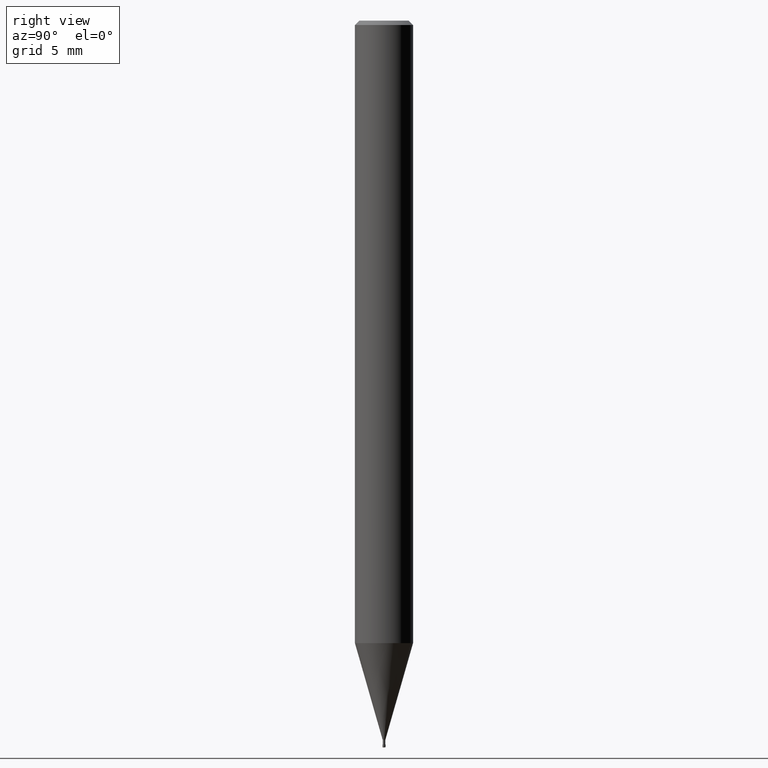
[diagram: clean part render]
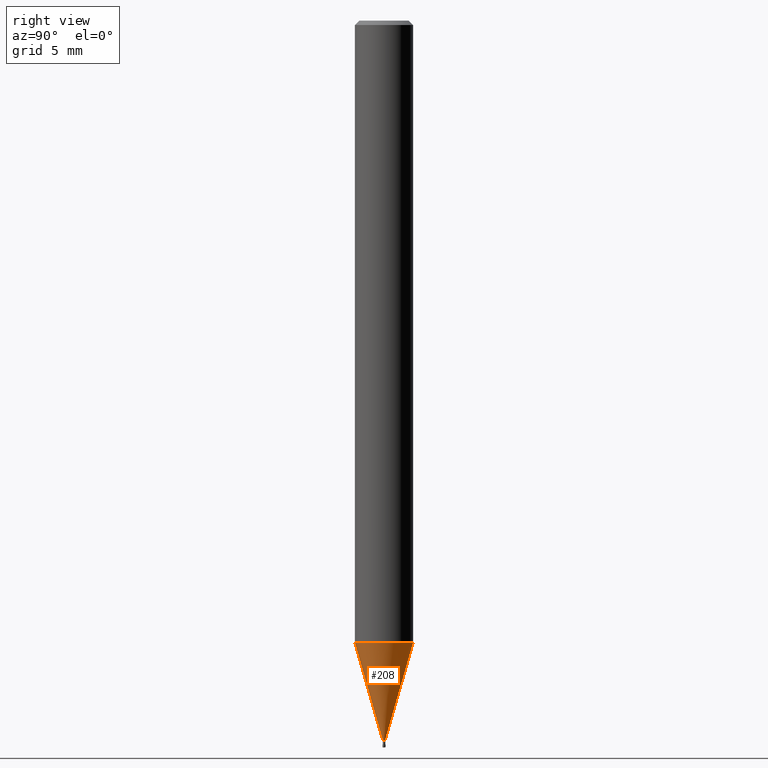
[diagram: same view with one face highlighted and labeled with its STEP entity id]
A machine part, right view. The second image highlights one B-rep face of the part: STEP entity #208.
In plain terms, the highlighted conical surface has half-angle 16.001 deg.
Its self-contained STEP definition (entity closure, byte-faithful):
#124=VERTEX_POINT('',#281);
#126=EDGE_CURVE('',#194,#176,#283,.T.);
#132=EDGE_CURVE('',#184,#124,#291,.T.);
#176=VERTEX_POINT('',#340);
#180=EDGE_CURVE('',#124,#176,#345,.T.);
#184=VERTEX_POINT('',#350);
#194=VERTEX_POINT('',#361);
#208=ADVANCED_FACE('',(#376),#377,.T.);
#228=EDGE_CURVE('',#194,#184,#398,.T.);
#281=CARTESIAN_POINT('',(1.04030309757211E-017,-0.08495,-49.5));
#283=CIRCLE('',#455,1.99995);
#291=CIRCLE('',#464,0.08495);
#340=CARTESIAN_POINT('',(2.44915147732706E-016,-1.99995,-42.822));
#345=LINE('',#530,#531);
#350=CARTESIAN_POINT('',(0.0,0.08495,-49.5));
#361=CARTESIAN_POINT('',(0.0,1.99995,-42.822));
#376=FACE_OUTER_BOUND('',#566,.T.);
#377=CONICAL_SURFACE('',#567,1.04245,0.279268497676986);
#398=LINE('',#596,#597);
#455=AXIS2_PLACEMENT_3D('',#648,#649,#650);
#464=AXIS2_PLACEMENT_3D('',#665,#666,#667);
#530=CARTESIAN_POINT('',(1.27659089354214E-016,-1.04245,-46.161));
#531=VECTOR('',#735,1.0);
#566=EDGE_LOOP('',(#772,#773,#774,#775));
#567=AXIS2_PLACEMENT_3D('',#776,#777,#778);
#596=CARTESIAN_POINT('',(-1.27659089354214E-016,1.04245,-46.161));
#597=VECTOR('',#798,1.0);
#648=CARTESIAN_POINT('',(0.0,0.0,-42.822));
#649=DIRECTION('',(0.0,0.0,-1.0));
#650=DIRECTION('',(0.0,1.0,0.0));
#665=CARTESIAN_POINT('',(0.0,0.0,-49.5));
#666=DIRECTION('',(0.0,0.0,-1.0));
#667=DIRECTION('',(0.0,1.0,0.0));
#735=DIRECTION('',(3.37565876916665E-017,-0.275652560402792,0.961257335963365));
#772=ORIENTED_EDGE('',*,*,#228,.F.);
#773=ORIENTED_EDGE('',*,*,#126,.T.);
#774=ORIENTED_EDGE('',*,*,#180,.F.);
#775=ORIENTED_EDGE('',*,*,#132,.F.);
#776=CARTESIAN_POINT('',(0.0,0.0,-46.161));
#777=DIRECTION('',(-0.0,-0.0,1.0));
#778=DIRECTION('',(0.0,1.0,0.0));
#798=DIRECTION('',(3.37565876916665E-017,-0.275652560402792,-0.961257335963365));